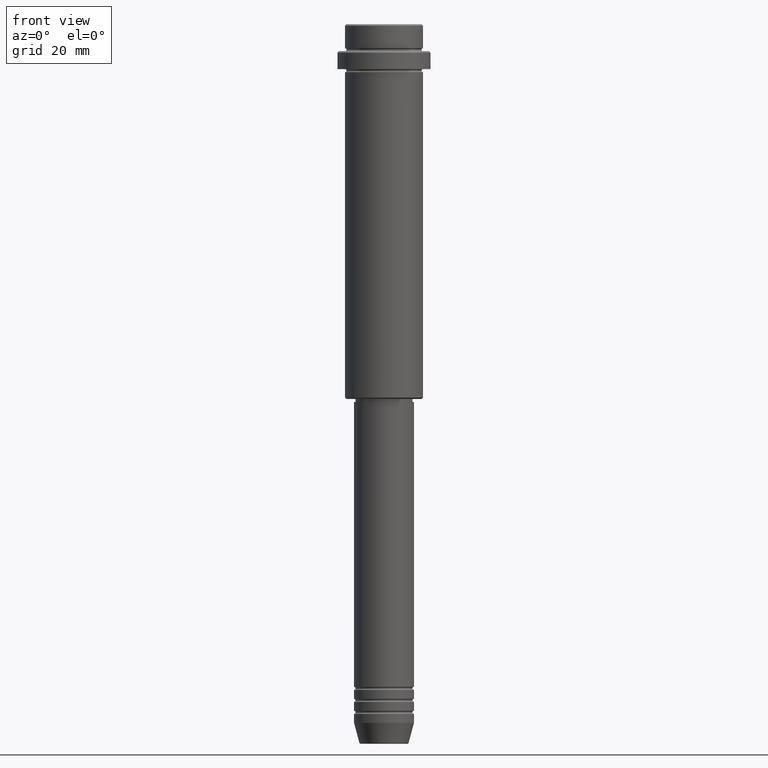
[diagram: clean part render]
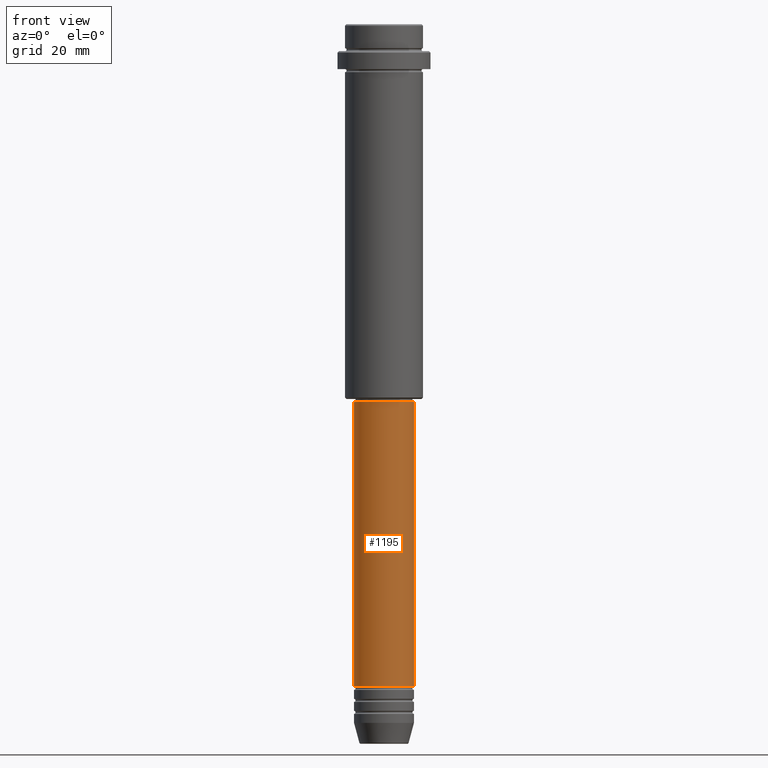
[diagram: same view with one face highlighted and labeled with its STEP entity id]
A machine part, front view. The second image highlights one B-rep face of the part: STEP entity #1195.
In plain terms, the highlighted cylindrical surface (edge-blend (fillet) strip) has radius 10 mm, axis along (-0, -0, 1).
Its self-contained STEP definition (entity closure, byte-faithful):
#82 = CARTESIAN_POINT ( 'NONE',  ( 10.00000000000000000, 0.000000000000000000, -220.9999999999998863 ) ) ;
#86 = EDGE_LOOP ( 'NONE', ( #1409, #1347, #304, #205 ) ) ;
#108 = CARTESIAN_POINT ( 'NONE',  ( 0.000000000000000000, 0.000000000000000000, -126.0000000000000000 ) ) ;
#127 = EDGE_CURVE ( 'NONE', #463, #1376, #136, .T. ) ;
#136 = CIRCLE ( 'NONE', #602, 10.00000000000000178 ) ;
#166 = AXIS2_PLACEMENT_3D ( 'NONE', #828, #1349, #937 ) ;
#189 = VECTOR ( 'NONE', #1254, 1000.000000000000000 ) ;
#202 = DIRECTION ( 'NONE',  ( -0.000000000000000000, -0.000000000000000000, 1.000000000000000000 ) ) ;
#205 = ORIENTED_EDGE ( 'NONE', *, *, #127, .F. ) ;
#268 = CYLINDRICAL_SURFACE ( 'NONE', #166, 10.00000000000000178 ) ;
#304 = ORIENTED_EDGE ( 'NONE', *, *, #751, .T. ) ;
#345 = CARTESIAN_POINT ( 'NONE',  ( 0.000000000000000000, 0.000000000000000000, -220.9999999999998863 ) ) ;
#461 = DIRECTION ( 'NONE',  ( -0.000000000000000000, -0.000000000000000000, 1.000000000000000000 ) ) ;
#463 = VERTEX_POINT ( 'NONE', #622 ) ;
#523 = VERTEX_POINT ( 'NONE', #82 ) ;
#524 = EDGE_CURVE ( 'NONE', #993, #463, #868, .T. ) ;
#541 = DIRECTION ( 'NONE',  ( 1.000000000000000000, 0.000000000000000000, 0.000000000000000000 ) ) ;
#584 = CIRCLE ( 'NONE', #865, 10.00000000000000000 ) ;
#602 = AXIS2_PLACEMENT_3D ( 'NONE', #108, #461, #782 ) ;
#622 = CARTESIAN_POINT ( 'NONE',  ( -10.00000000000000178, 1.224646799147353454E-15, -126.0000000000000000 ) ) ;
#631 = CARTESIAN_POINT ( 'NONE',  ( -10.00000000000000000, 1.224646799147353256E-15, -220.9999999999998863 ) ) ;
#751 = EDGE_CURVE ( 'NONE', #523, #1376, #930, .T. ) ;
#782 = DIRECTION ( 'NONE',  ( 1.000000000000000000, 0.000000000000000000, 0.000000000000000000 ) ) ;
#815 = CARTESIAN_POINT ( 'NONE',  ( 10.00000000000000178, 0.000000000000000000, 0.000000000000000000 ) ) ;
#828 = CARTESIAN_POINT ( 'NONE',  ( 0.000000000000000000, 0.000000000000000000, 0.000000000000000000 ) ) ;
#865 = AXIS2_PLACEMENT_3D ( 'NONE', #345, #1014, #541 ) ;
#868 = LINE ( 'NONE', #1292, #1333 ) ;
#930 = LINE ( 'NONE', #815, #189 ) ;
#937 = DIRECTION ( 'NONE',  ( 1.000000000000000000, 0.000000000000000000, 0.000000000000000000 ) ) ;
#993 = VERTEX_POINT ( 'NONE', #631 ) ;
#1014 = DIRECTION ( 'NONE',  ( -0.000000000000000000, -0.000000000000000000, 1.000000000000000000 ) ) ;
#1072 = EDGE_CURVE ( 'NONE', #993, #523, #584, .T. ) ;
#1195 = ADVANCED_FACE ( 'NONE', ( #1243 ), #268, .T. ) ;
#1243 = FACE_OUTER_BOUND ( 'NONE', #86, .T. ) ;
#1254 = DIRECTION ( 'NONE',  ( -0.000000000000000000, -0.000000000000000000, 1.000000000000000000 ) ) ;
#1292 = CARTESIAN_POINT ( 'NONE',  ( -10.00000000000000178, 1.224646799147353454E-15, 0.000000000000000000 ) ) ;
#1333 = VECTOR ( 'NONE', #202, 1000.000000000000000 ) ;
#1347 = ORIENTED_EDGE ( 'NONE', *, *, #1072, .T. ) ;
#1349 = DIRECTION ( 'NONE',  ( -0.000000000000000000, -0.000000000000000000, 1.000000000000000000 ) ) ;
#1375 = CARTESIAN_POINT ( 'NONE',  ( 10.00000000000000178, 0.000000000000000000, -126.0000000000000000 ) ) ;
#1376 = VERTEX_POINT ( 'NONE', #1375 ) ;
#1409 = ORIENTED_EDGE ( 'NONE', *, *, #524, .F. ) ;